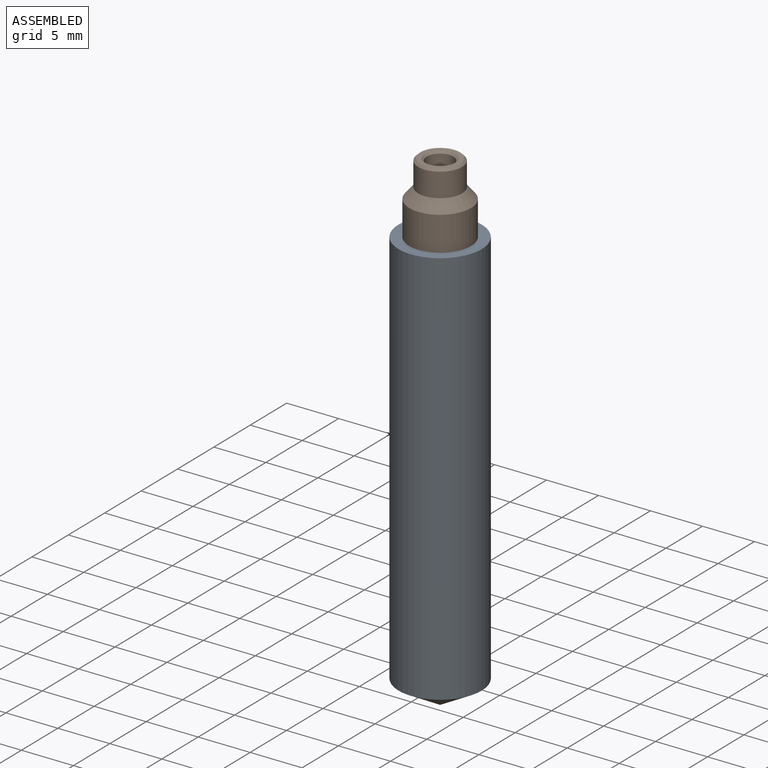
[diagram: assembled view]
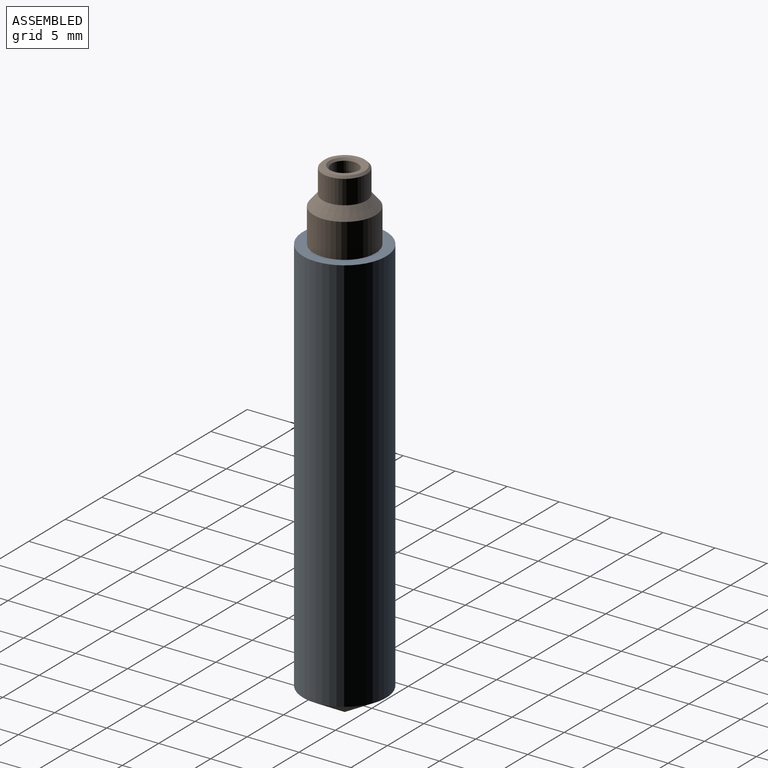
[diagram: assembled view, second angle]
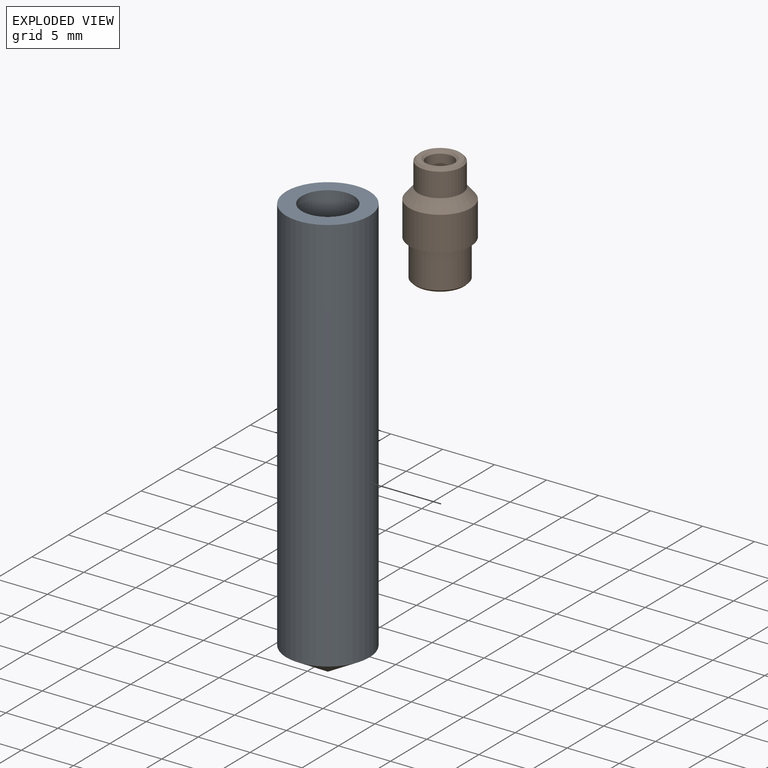
[diagram: exploded view]
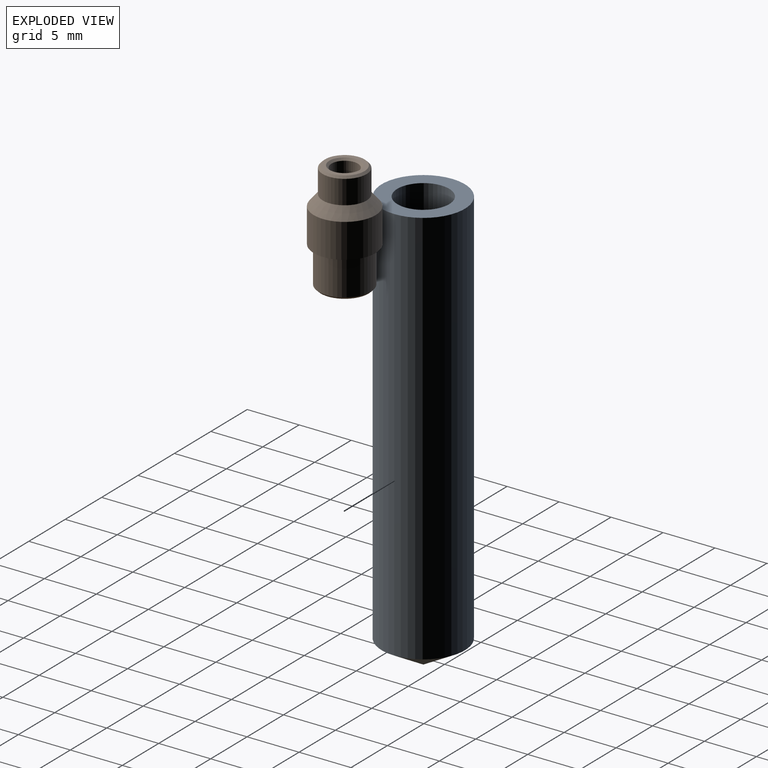
[diagram: exploded view, second angle]
ASSEMBLY  parts=2 mates=2
PART A: 5 faces, bbox 8x8x40.7 mm
  f0: cylinder r=4mm len=38.39mm, axis (0,0,-1), area 964.9mm2, adj f1,f4
  f1: plane 8x8mm, normal (0,0,1), area 30.6mm2, adj f0,f3
  f2: cone r=0mm half-angle=59deg, axis (0,0,1), area 22.9mm2, adj f3
  f3: cylinder r=2.5mm len=37.2mm, axis (0,0,1), area 584.3mm2, adj f1,f2
  f4: cone r=0mm half-angle=60deg, axis (0,0,1), area 58mm2, adj f0
PART B: 11 faces, bbox 6x10.5x6 mm
  f0: plane 3.82x3.82mm, normal (0,-1,0), area 4.6mm2, adj f8,f10
  f1: cylinder r=1.28mm len=10.34mm, axis (0,-1,0), area 82.8mm2, adj f2,f8
  f2: plane 4.6x4.6mm, normal (0,1,0), area 11.5mm2, adj f1,f9
  f3: cylinder r=2.5mm len=5mm, axis (0,-1,0), area 55mm2, adj f4,f9
  f4: plane 5.96x5.96mm, normal (0,1,0), area 8.3mm2, adj f3,f5
  f5: cylinder r=2.98mm len=5.96mm, axis (0,-1,0), area 61.8mm2, adj f4,f6
  f6: cone r=2.11mm half-angle=39.9deg, axis (0,1,0), area 21.7mm2, adj f5,f7
  f7: cylinder r=2.11mm len=4.22mm, axis (0,-1,0), area 30.5mm2, adj f6,f10
  f8: cone r=1.28mm half-angle=45deg, axis (0,-1,0), area 2.4mm2, adj f0,f1
  f9: cone r=2.5mm half-angle=45deg, axis (0,-1,0), area 4.3mm2, adj f2,f3
  f10: cone r=1.91mm half-angle=45deg, axis (0,1,0), area 3.6mm2, adj f0,f7
PLACE A t=(-21.91,4.56,-34.22)mm
PLACE B rot(axis=(-1,0,0),90deg) t=(-21.91,4.56,13.32)mm
MATE planar B.f1 <-> A.f0  axis (0,0,-1) through (-21.91,4.56,6.48)mm
MATE cylindrical B.f1 <-> A.f0  axis (0,0,1) through (-21.91,4.56,6.48)mm
